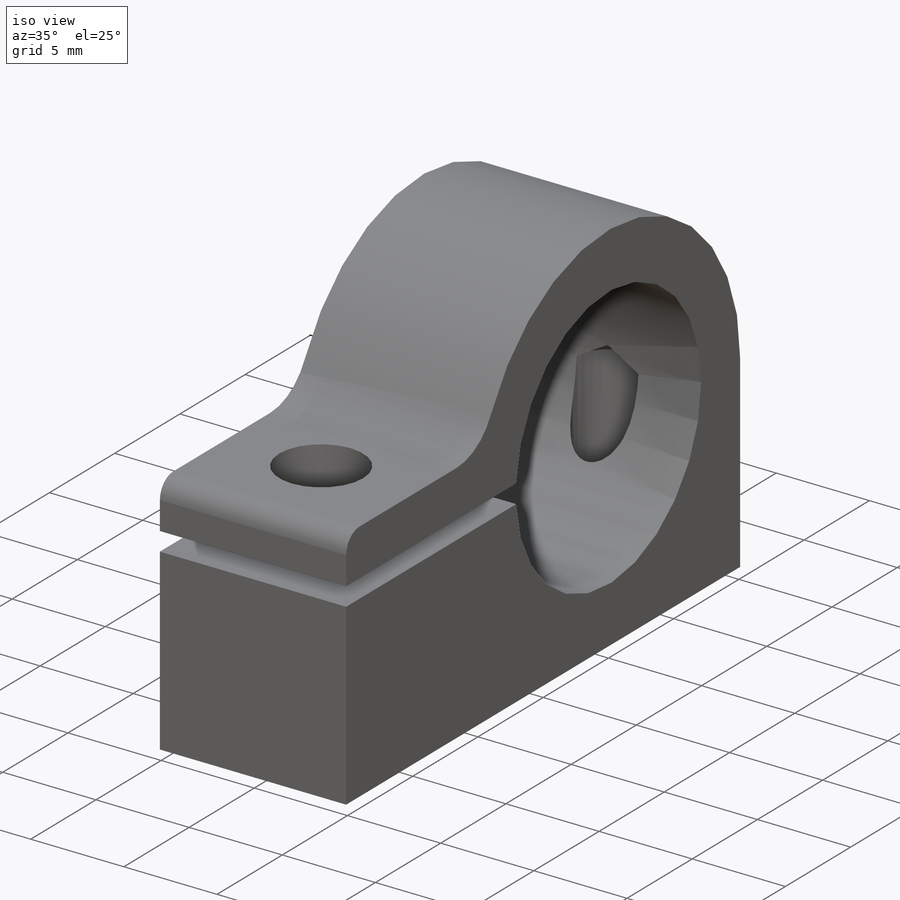
[diagram: iso view]
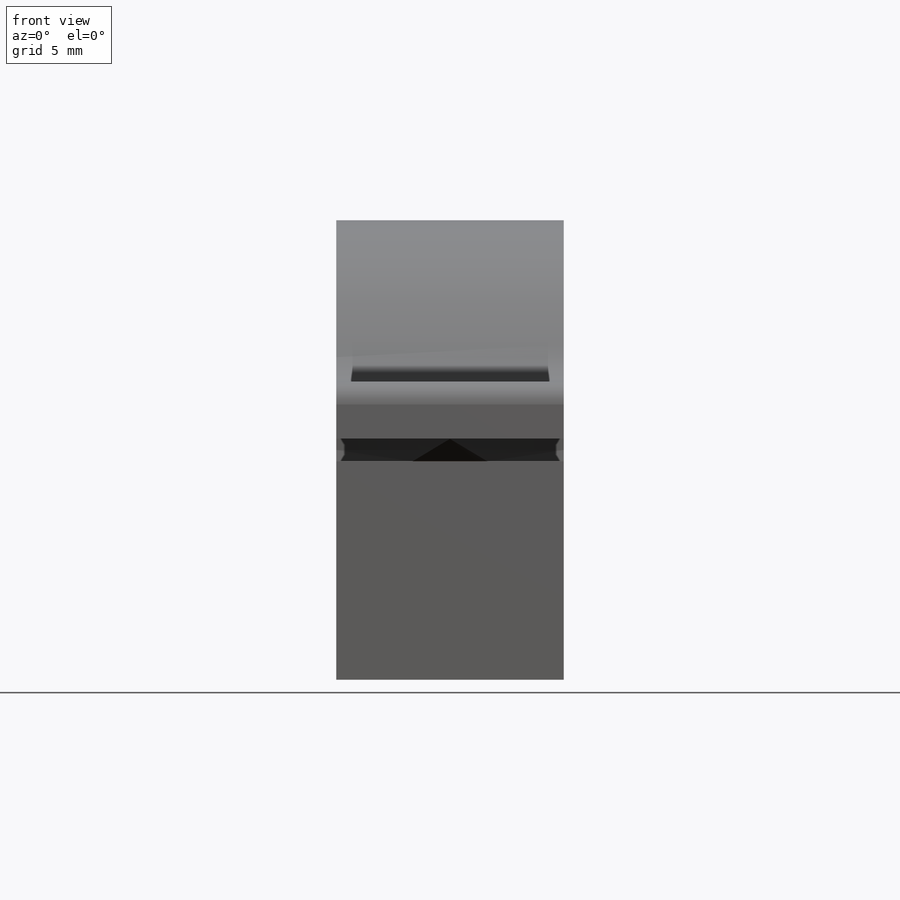
[diagram: front view]
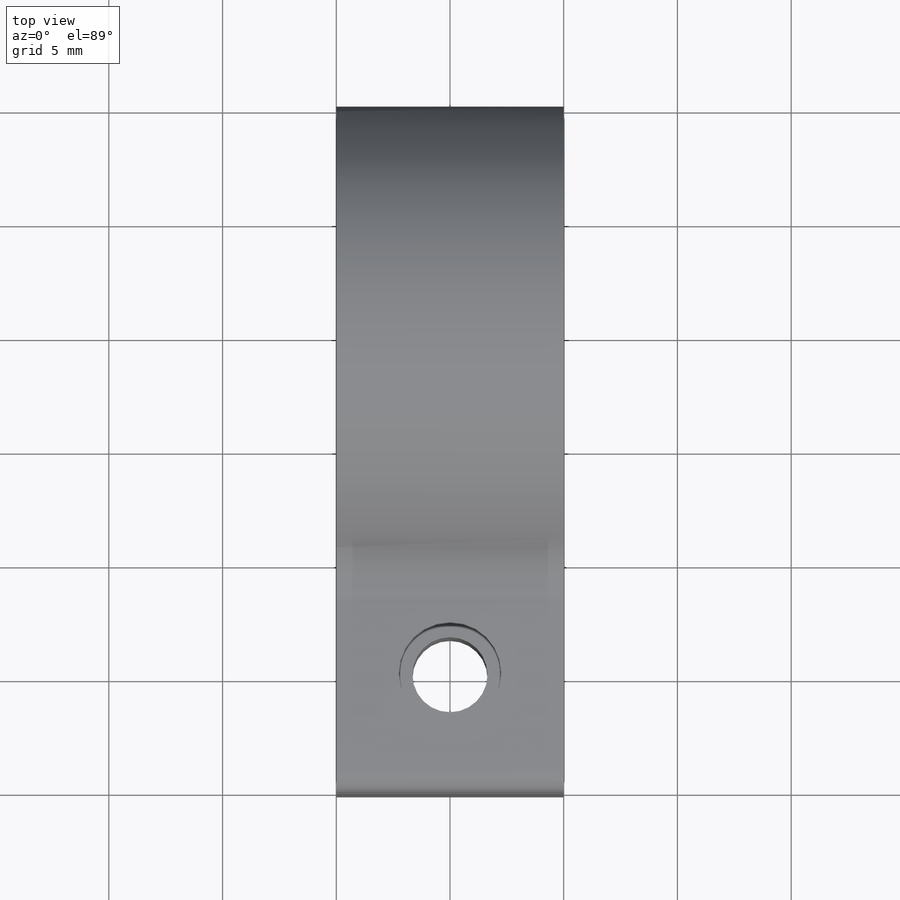
[diagram: top view]
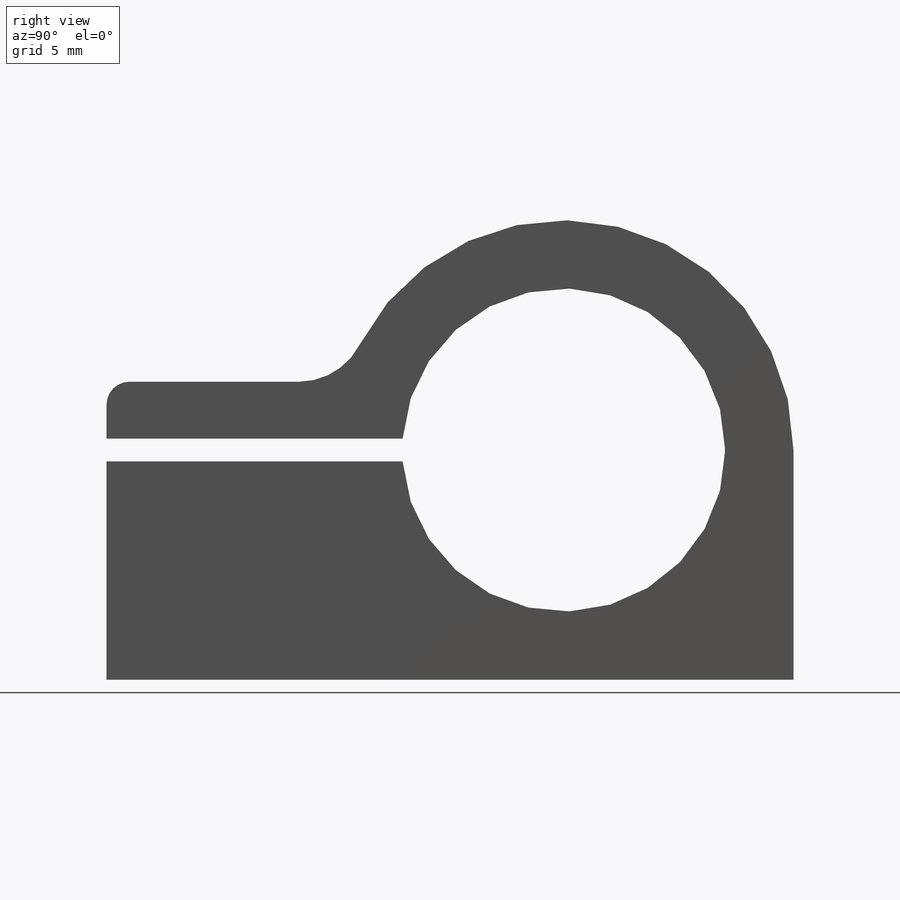
[diagram: right view]
SOLIDWORKS PART (.sldprt)
format: sldprt  version: not decoded by parser v0  size: 354,304 bytes
history: native  units: mm
features: hole x3, thread x3, fillet x2, material x1, sketch x1, extrude x1, cut_extrude x1 + 9 further entries (+11 scaffold rows collapsed)
feature tree (32):
  scaffold x11  (default folders/planes/origin — collapsed)
  material  "3.1355 (EN-AW 2024)"
  sketch  "Эскиз1"  dims[D1=14.2mm D2=20.2mm D3=10.0mm D4=3.0mm D5=20.1mm]
  extrude  "Бобышка-Вытянуть1"  Depth=10mm
  "Эскиз2"
  hole  "Отверстие обработанное метчиком M4x0.71"  [1 undecoded]
  "Эскиз4"
  "Эскиз3"  4=25.4mm Диаметр проходного сверла=3.3mm Глубина проходного сверла=13.1mm
  thread  "Отверстие резьбы1"  Diameter=4mm  [1 undecoded]
  "Эскиз5"
  cut_extrude  "Вырез-Вытянуть1"  [1 undecoded]
  fillet  "Скругление1"  Radius=3mm
  hole  "Отверстие с зазором M41"  [1 undecoded]
  "Эскиз10"
  "Эскиз8"  4=25.4mm Диаметр отверстия=4.5mm Глубина отверстия=2.499mm Угол заточки сверла=118deg
  "Эскиз11"
  hole  "Отверстие обработанное метчиком M4x0.72"  [1 undecoded]
  "Эскиз13"
  "Эскиз12"  4=25.4mm Диаметр сверла=3.3mm Глубина сверла=9.599mm Угол заточки сверла=118deg
  thread  "Отверстие резьбы2"  Diameter=8mm  [1 undecoded]
  thread  "Отверстие резьбы3"  Diameter=8mm  [1 undecoded]
  fillet  "Скругление2"  Radius=1mm
decode coverage: 7 of 11 modeling features carry decoded parameters; 9 rows unclassified (native names shown)
note: 7 parameter values undecoded
summary: no parameter record found for 4 features
note: suppression state not decoded; provenance and decode notes live in map.json
